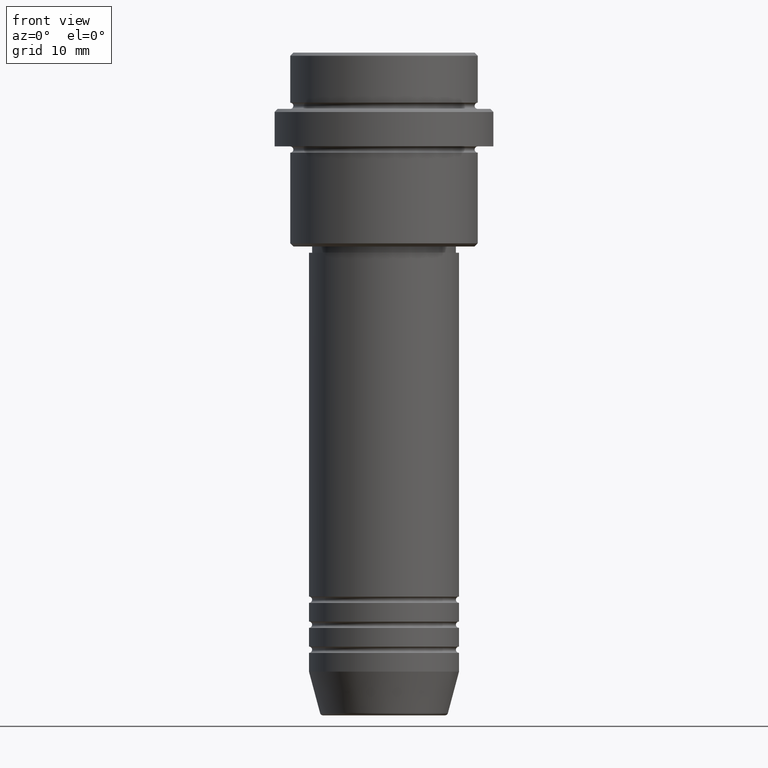
[diagram: clean part render]
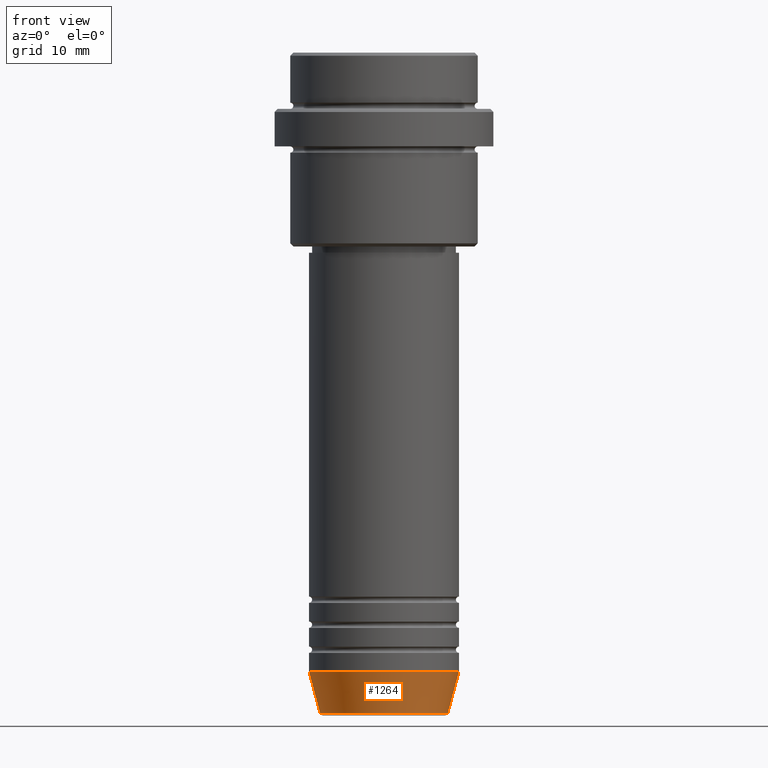
[diagram: same view with one face highlighted and labeled with its STEP entity id]
A machine part, front view. The second image highlights one B-rep face of the part: STEP entity #1264.
In plain terms, the highlighted conical surface has half-angle 15 deg.
Its self-contained STEP definition (entity closure, byte-faithful):
#43 = VERTEX_POINT ( 'NONE', #300 ) ;
#52 = EDGE_CURVE ( 'NONE', #1115, #43, #1382, .T. ) ;
#62 = DIRECTION ( 'NONE',  ( -0.000000000000000000, -0.000000000000000000, 1.000000000000000000 ) ) ;
#82 = DIRECTION ( 'NONE',  ( -0.000000000000000000, -0.000000000000000000, 1.000000000000000000 ) ) ;
#94 = DIRECTION ( 'NONE',  ( 1.000000000000000000, 0.000000000000000000, 0.000000000000000000 ) ) ;
#137 = CARTESIAN_POINT ( 'NONE',  ( -12.00000000000000000, 1.469576158976823947E-15, -99.00000000000000000 ) ) ;
#158 = EDGE_CURVE ( 'NONE', #850, #1115, #1193, .T. ) ;
#171 = ORIENTED_EDGE ( 'NONE', *, *, #52, .F. ) ;
#202 = EDGE_CURVE ( 'NONE', #1190, #43, #211, .T. ) ;
#211 = LINE ( 'NONE', #230, #1107 ) ;
#227 = AXIS2_PLACEMENT_3D ( 'NONE', #1133, #730, #388 ) ;
#230 = CARTESIAN_POINT ( 'NONE',  ( 12.00000000000000000, 0.000000000000000000, -99.00000000000000000 ) ) ;
#300 = CARTESIAN_POINT ( 'NONE',  ( 12.00000000000000000, 0.000000000000000000, -99.00000000000000000 ) ) ;
#331 = DIRECTION ( 'NONE',  ( -0.2588190451025213501, 3.169619151431772337E-17, 0.9659258262890680902 ) ) ;
#388 = DIRECTION ( 'NONE',  ( 1.000000000000000000, 0.000000000000000000, 0.000000000000000000 ) ) ;
#416 = CARTESIAN_POINT ( 'NONE',  ( 0.000000000000000000, 0.000000000000000000, -99.00000000000000000 ) ) ;
#420 = CONICAL_SURFACE ( 'NONE', #715, 12.00000000000000000, 0.2617993877991500740 ) ;
#443 = AXIS2_PLACEMENT_3D ( 'NONE', #1388, #62, #94 ) ;
#447 = CARTESIAN_POINT ( 'NONE',  ( -12.00000000000000000, 1.469576158976823947E-15, -99.00000000000000000 ) ) ;
#550 = EDGE_LOOP ( 'NONE', ( #1283, #1092, #1347, #171 ) ) ;
#715 = AXIS2_PLACEMENT_3D ( 'NONE', #416, #82, #1401 ) ;
#730 = DIRECTION ( 'NONE',  ( -0.000000000000000000, -0.000000000000000000, 1.000000000000000000 ) ) ;
#850 = VERTEX_POINT ( 'NONE', #1158 ) ;
#1092 = ORIENTED_EDGE ( 'NONE', *, *, #1169, .T. ) ;
#1107 = VECTOR ( 'NONE', #1413, 1000.000000000000000 ) ;
#1115 = VERTEX_POINT ( 'NONE', #137 ) ;
#1133 = CARTESIAN_POINT ( 'NONE',  ( 0.000000000000000000, 0.000000000000000000, -105.6294095225512564 ) ) ;
#1145 = CARTESIAN_POINT ( 'NONE',  ( 10.22365507213719305, 0.000000000000000000, -105.6294095225512564 ) ) ;
#1158 = CARTESIAN_POINT ( 'NONE',  ( -10.22365507213719305, 1.360806402472382744E-15, -105.6294095225512564 ) ) ;
#1169 = EDGE_CURVE ( 'NONE', #850, #1190, #1273, .T. ) ;
#1174 = FACE_OUTER_BOUND ( 'NONE', #550, .T. ) ;
#1190 = VERTEX_POINT ( 'NONE', #1145 ) ;
#1193 = LINE ( 'NONE', #447, #1358 ) ;
#1264 = ADVANCED_FACE ( 'NONE', ( #1174 ), #420, .T. ) ;
#1273 = CIRCLE ( 'NONE', #227, 10.22365507213719305 ) ;
#1283 = ORIENTED_EDGE ( 'NONE', *, *, #158, .F. ) ;
#1347 = ORIENTED_EDGE ( 'NONE', *, *, #202, .T. ) ;
#1358 = VECTOR ( 'NONE', #331, 1000.000000000000000 ) ;
#1382 = CIRCLE ( 'NONE', #443, 12.00000000000000000 ) ;
#1388 = CARTESIAN_POINT ( 'NONE',  ( 0.000000000000000000, 0.000000000000000000, -99.00000000000000000 ) ) ;
#1401 = DIRECTION ( 'NONE',  ( 1.000000000000000000, 0.000000000000000000, 0.000000000000000000 ) ) ;
#1413 = DIRECTION ( 'NONE',  ( 0.2588190451025213501, 0.000000000000000000, 0.9659258262890680902 ) ) ;